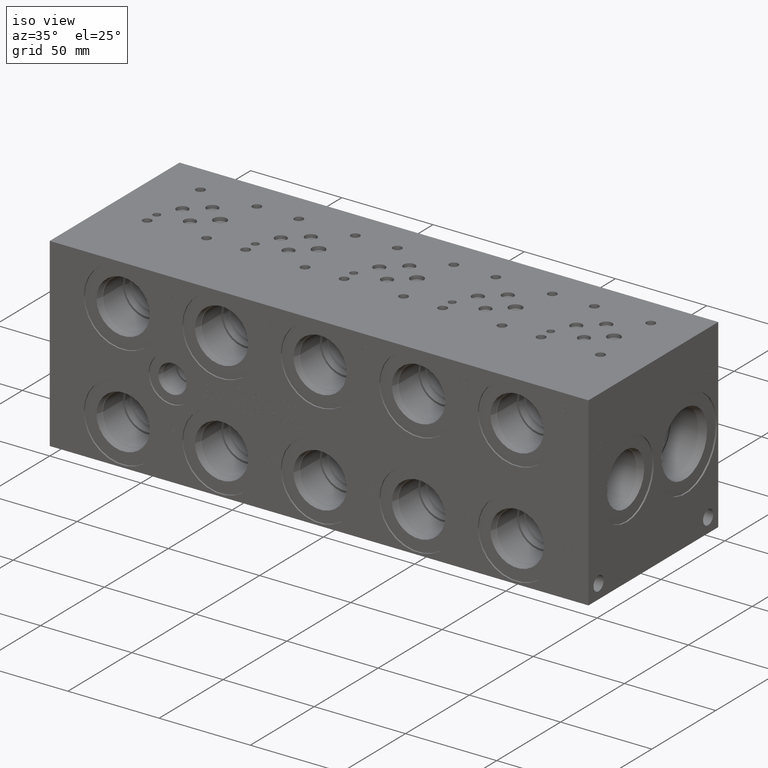
[diagram: clean part render]
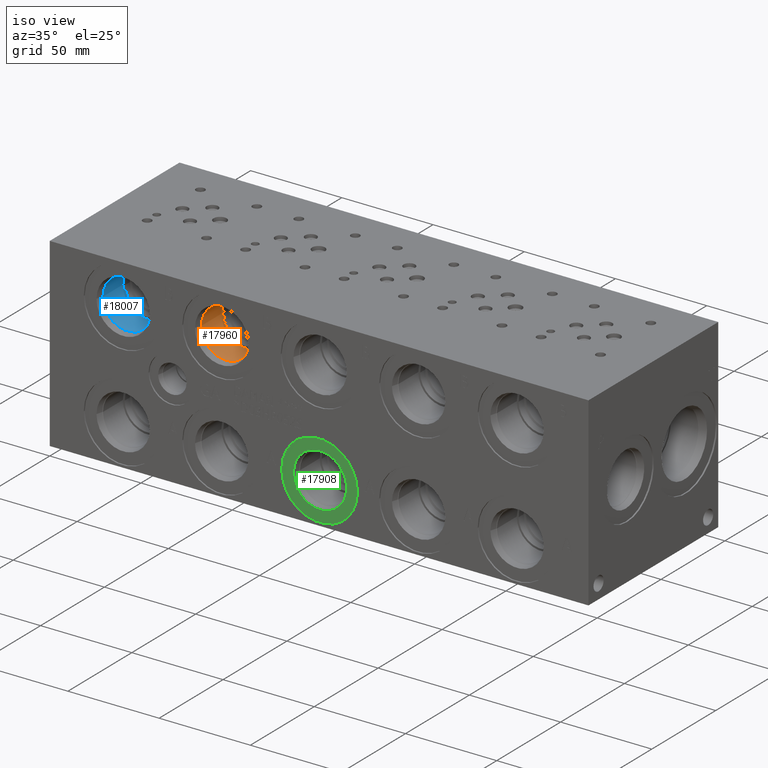
[diagram: same view with three faces highlighted in distinct colors, each labeled with its STEP entity id]
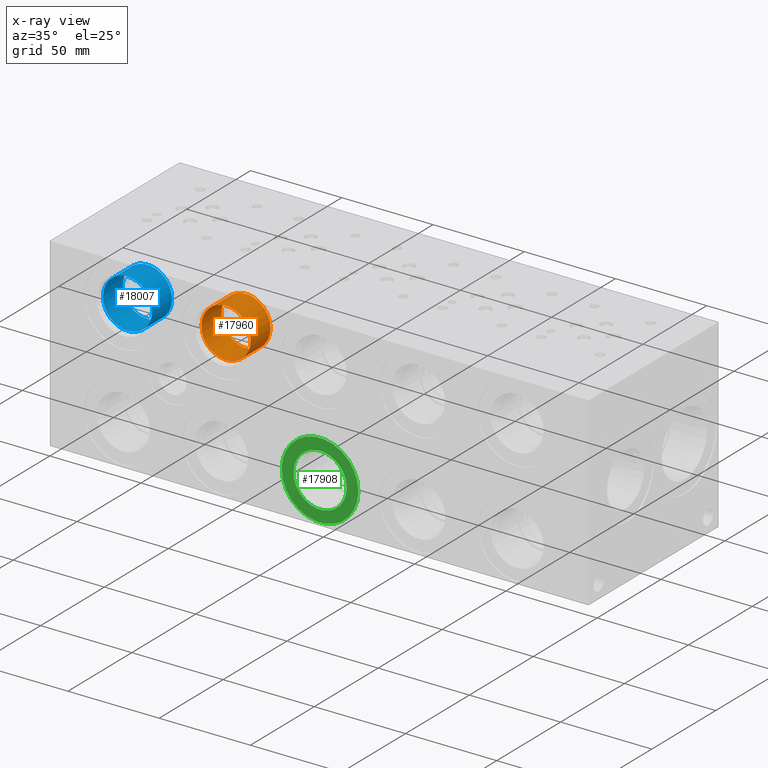
[diagram: x-ray of the same camera — body ghosted, the three highlighted faces saturated]
A machine part, iso view with three faces highlighted in distinct colors.
The next image is the same camera in x-ray (body ghosted, the three faces saturated) — at least one of them is partly hidden behind the body in this view.
Their STEP definitions:

[orange] entity #17960 — the highlighted cylindrical surface (bore or boss wall) has radius 13.5001 mm, axis along (0, -1, 0).
#227=CYLINDRICAL_SURFACE('',#19108,13.5001);
#885=CIRCLE('',#19105,13.5001);
#886=CIRCLE('',#19106,13.5001);
#888=CIRCLE('',#19109,13.5001);
#2473=FACE_OUTER_BOUND('',#3527,.T.);
#3527=EDGE_LOOP('',(#15378,#15379,#15380,#15381,#15382));
#5152=LINE('',#30882,#6682);
#6682=VECTOR('',#22861,13.5001);
#8345=VERTEX_POINT('',#30873);
#8346=VERTEX_POINT('',#30874);
#8348=VERTEX_POINT('',#30880);
#10773=EDGE_CURVE('',#8345,#8346,#885,.T.);
#10774=EDGE_CURVE('',#8346,#8345,#886,.T.);
#10776=EDGE_CURVE('',#8348,#8348,#888,.T.);
#10777=EDGE_CURVE('',#8348,#8346,#5152,.T.);
#15378=ORIENTED_EDGE('',*,*,#10776,.F.);
#15379=ORIENTED_EDGE('',*,*,#10777,.T.);
#15380=ORIENTED_EDGE('',*,*,#10773,.F.);
#15381=ORIENTED_EDGE('',*,*,#10774,.F.);
#15382=ORIENTED_EDGE('',*,*,#10777,.F.);
#17960=ADVANCED_FACE('',(#2473),#227,.F.);
#19105=AXIS2_PLACEMENT_3D('',#30875,#22851,#22852);
#19106=AXIS2_PLACEMENT_3D('',#30876,#22853,#22854);
#19108=AXIS2_PLACEMENT_3D('',#30879,#22857,#22858);
#19109=AXIS2_PLACEMENT_3D('',#30881,#22859,#22860);
#22851=DIRECTION('center_axis',(0.,-1.,0.));
#22852=DIRECTION('ref_axis',(1.,0.,0.));
#22853=DIRECTION('center_axis',(0.,-1.,0.));
#22854=DIRECTION('ref_axis',(1.,0.,0.));
#22857=DIRECTION('center_axis',(0.,-1.,0.));
#22858=DIRECTION('ref_axis',(1.,0.,0.));
#22859=DIRECTION('center_axis',(0.,1.,0.));
#22860=DIRECTION('ref_axis',(1.,0.,0.));
#22861=DIRECTION('',(0.,1.,0.));
#30873=CARTESIAN_POINT('',(107.1499,19.8374,79.375));
#30874=CARTESIAN_POINT('',(80.1497,19.8374,79.375));
#30875=CARTESIAN_POINT('Origin',(93.6498,19.8374,79.375));
#30876=CARTESIAN_POINT('Origin',(93.6498,19.8374,79.375));
#30879=CARTESIAN_POINT('Origin',(93.6498,9.9187,79.375));
#30880=CARTESIAN_POINT('',(80.1497,4.27989999999999,79.375));
#30881=CARTESIAN_POINT('Origin',(93.6498,4.27989999999999,79.375));
#30882=CARTESIAN_POINT('',(80.1497,9.9187,79.375));

[blue] entity #18007 — the highlighted cylindrical surface (bore or boss wall) has radius 13.495 mm, axis along (0, -1, 0).
#249=CYLINDRICAL_SURFACE('',#19224,13.495);
#954=CIRCLE('',#19221,13.495);
#955=CIRCLE('',#19222,13.495);
#957=CIRCLE('',#19225,13.495);
#2520=FACE_OUTER_BOUND('',#3583,.T.);
#3583=EDGE_LOOP('',(#15604,#15605,#15606,#15607,#15608));
#5190=LINE('',#31108,#6720);
#6720=VECTOR('',#23131,13.495);
#8417=VERTEX_POINT('',#31099);
#8418=VERTEX_POINT('',#31100);
#8420=VERTEX_POINT('',#31106);
#10880=EDGE_CURVE('',#8417,#8418,#954,.T.);
#10881=EDGE_CURVE('',#8418,#8417,#955,.T.);
#10883=EDGE_CURVE('',#8420,#8420,#957,.T.);
#10884=EDGE_CURVE('',#8420,#8418,#5190,.T.);
#15604=ORIENTED_EDGE('',*,*,#10883,.F.);
#15605=ORIENTED_EDGE('',*,*,#10884,.T.);
#15606=ORIENTED_EDGE('',*,*,#10880,.F.);
#15607=ORIENTED_EDGE('',*,*,#10881,.F.);
#15608=ORIENTED_EDGE('',*,*,#10884,.F.);
#18007=ADVANCED_FACE('',(#2520),#249,.F.);
#19221=AXIS2_PLACEMENT_3D('',#31101,#23121,#23122);
#19222=AXIS2_PLACEMENT_3D('',#31102,#23123,#23124);
#19224=AXIS2_PLACEMENT_3D('',#31105,#23127,#23128);
#19225=AXIS2_PLACEMENT_3D('',#31107,#23129,#23130);
#23121=DIRECTION('center_axis',(0.,-1.,0.));
#23122=DIRECTION('ref_axis',(1.,0.,0.));
#23123=DIRECTION('center_axis',(0.,-1.,0.));
#23124=DIRECTION('ref_axis',(1.,0.,0.));
#23127=DIRECTION('center_axis',(0.,-1.,0.));
#23128=DIRECTION('ref_axis',(1.,0.,0.));
#23129=DIRECTION('center_axis',(0.,1.,0.));
#23130=DIRECTION('ref_axis',(1.,0.,0.));
#23131=DIRECTION('',(0.,1.,0.));
#31099=CARTESIAN_POINT('',(53.1698,19.8374,79.375));
#31100=CARTESIAN_POINT('',(26.1798,19.8374,79.375));
#31101=CARTESIAN_POINT('Origin',(39.6748,19.8374,79.375));
#31102=CARTESIAN_POINT('Origin',(39.6748,19.8374,79.375));
#31105=CARTESIAN_POINT('Origin',(39.6748,9.9187,79.375));
#31106=CARTESIAN_POINT('',(26.1798,4.285,79.375));
#31107=CARTESIAN_POINT('Origin',(39.6748,4.285,79.375));
#31108=CARTESIAN_POINT('',(26.1798,9.9187,79.375));

[green] entity #17908 — the highlighted planar face has unit normal (0, 1, 0).
#805=CIRCLE('',#18973,21.0185);
#806=CIRCLE('',#18974,21.0185);
#807=CIRCLE('',#18976,14.5923);
#808=CIRCLE('',#18977,14.5923);
#1581=FACE_BOUND('',#3469,.T.);
#2421=FACE_OUTER_BOUND('',#3468,.T.);
#3468=EDGE_LOOP('',(#15129,#15130));
#3469=EDGE_LOOP('',(#15131,#15132));
#8257=VERTEX_POINT('',#30607);
#8258=VERTEX_POINT('',#30609);
#8259=VERTEX_POINT('',#30613);
#8260=VERTEX_POINT('',#30614);
#10648=EDGE_CURVE('',#8257,#8258,#805,.T.);
#10649=EDGE_CURVE('',#8258,#8257,#806,.T.);
#10650=EDGE_CURVE('',#8259,#8260,#807,.T.);
#10651=EDGE_CURVE('',#8260,#8259,#808,.T.);
#15129=ORIENTED_EDGE('',*,*,#10649,.F.);
#15130=ORIENTED_EDGE('',*,*,#10648,.F.);
#15131=ORIENTED_EDGE('',*,*,#10650,.T.);
#15132=ORIENTED_EDGE('',*,*,#10651,.T.);
#16517=PLANE('',#18975);
#17908=ADVANCED_FACE('',(#2421,#1581),#16517,.F.);
#18973=AXIS2_PLACEMENT_3D('',#30610,#22542,#22543);
#18974=AXIS2_PLACEMENT_3D('',#30611,#22544,#22545);
#18975=AXIS2_PLACEMENT_3D('',#30612,#22546,#22547);
#18976=AXIS2_PLACEMENT_3D('',#30615,#22548,#22549);
#18977=AXIS2_PLACEMENT_3D('',#30616,#22550,#22551);
#22542=DIRECTION('center_axis',(0.,1.,0.));
#22543=DIRECTION('ref_axis',(1.,0.,0.));
#22544=DIRECTION('center_axis',(0.,1.,0.));
#22545=DIRECTION('ref_axis',(1.,0.,0.));
#22546=DIRECTION('center_axis',(0.,1.,0.));
#22547=DIRECTION('ref_axis',(0.,0.,1.));
#22548=DIRECTION('center_axis',(0.,1.,0.));
#22549=DIRECTION('ref_axis',(1.,0.,0.));
#22550=DIRECTION('center_axis',(0.,1.,0.));
#22551=DIRECTION('ref_axis',(1.,0.,0.));
#30607=CARTESIAN_POINT('',(126.6063,0.7874,22.225));
#30609=CARTESIAN_POINT('',(168.6433,0.7874,22.225));
#30610=CARTESIAN_POINT('Origin',(147.6248,0.7874,22.225));
#30611=CARTESIAN_POINT('Origin',(147.6248,0.7874,22.225));
#30612=CARTESIAN_POINT('Origin',(162.2171,0.7874,22.225));
#30613=CARTESIAN_POINT('',(162.2171,0.7874,22.225));
#30614=CARTESIAN_POINT('',(133.0325,0.787399999999995,22.225));
#30615=CARTESIAN_POINT('Origin',(147.6248,0.7874,22.225));
#30616=CARTESIAN_POINT('Origin',(147.6248,0.7874,22.225));